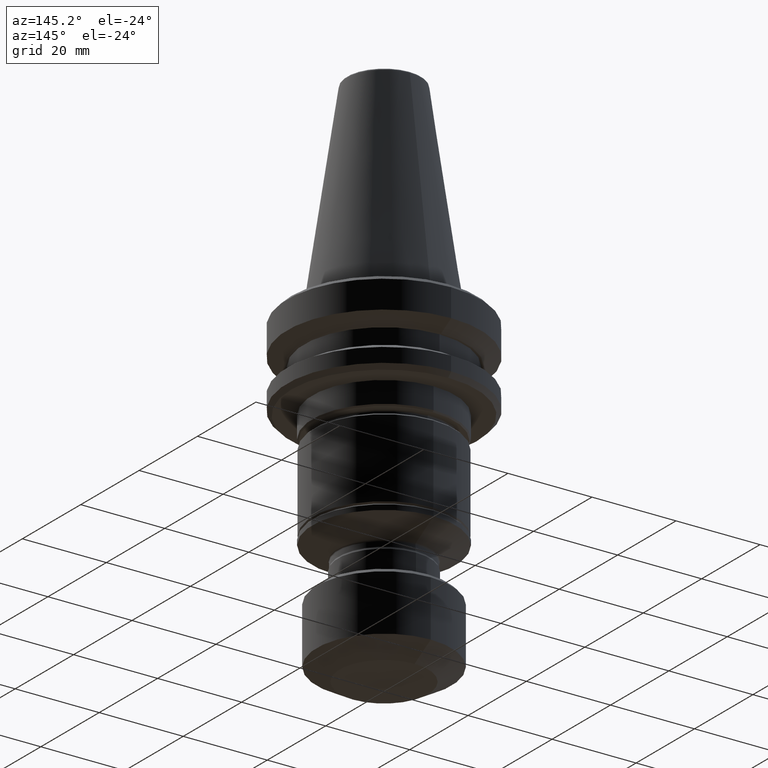
[diagram: clean part render]
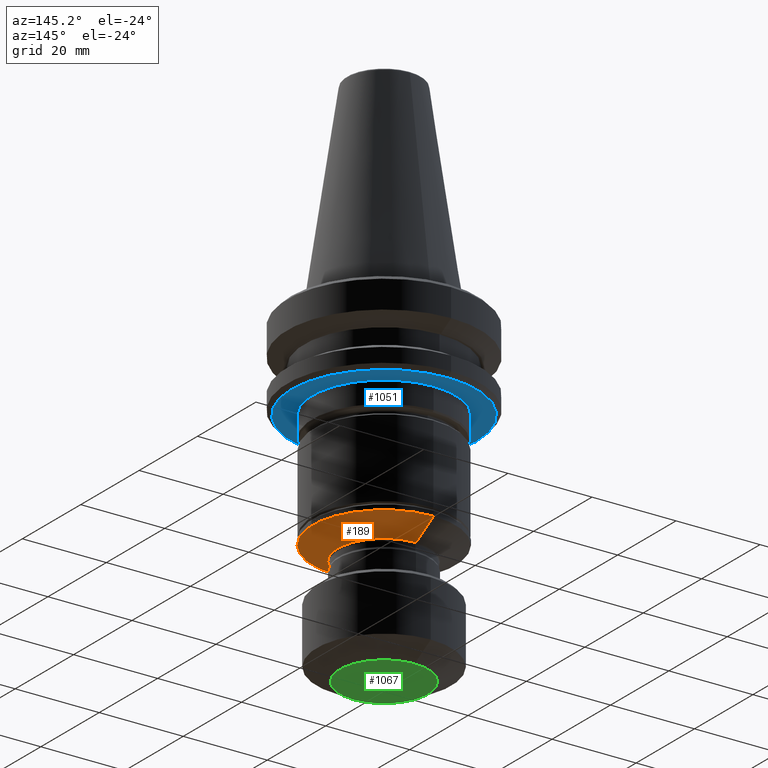
[diagram: same view with three faces highlighted in distinct colors, each labeled with its STEP entity id]
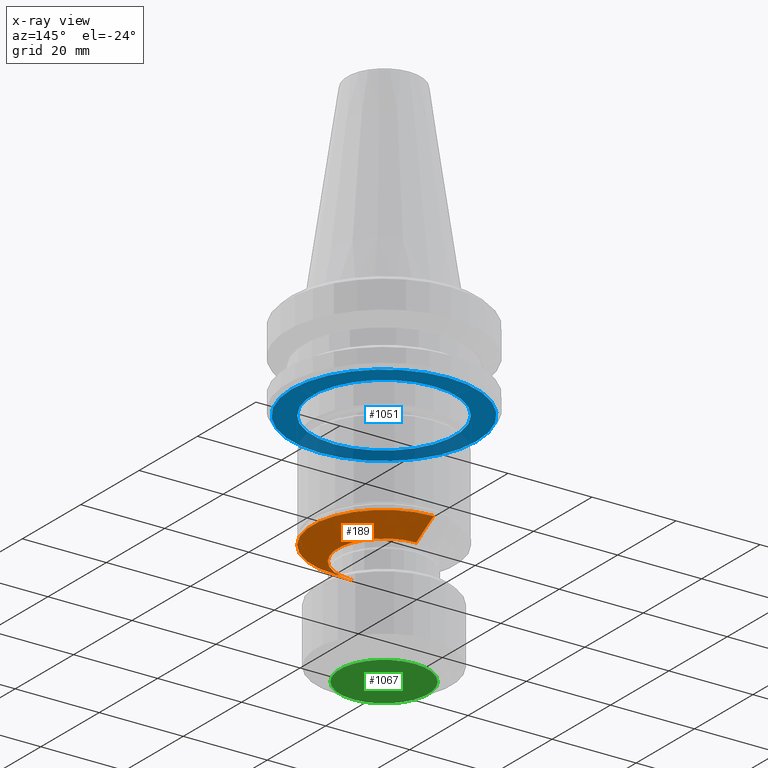
[diagram: x-ray of the same camera — body ghosted, the three highlighted faces saturated]
A machine part, auxiliary view with three faces highlighted in distinct colors.
The next image is the same camera in x-ray (body ghosted, the three faces saturated) — at least one of them is partly hidden behind the body in this view.
Their STEP definitions:

[orange] entity #189 — the highlighted conical surface has half-angle 60 deg.
#88 = DIRECTION ( 'NONE',  ( -0.0000000000000000000, 1.249865351798584200E-014, 1.000000000000000000 ) ) ;
#139 = CIRCLE ( 'NONE', #1562, 11.00000000000842300 ) ;
#160 = LINE ( 'NONE', #602, #583 ) ;
#189 = ADVANCED_FACE ( 'NONE', ( #737 ), #691, .T. ) ;
#335 = DIRECTION ( 'NONE',  ( 0.0000000000000000000, -1.000000000000000000, 1.261617073436711700E-014 ) ) ;
#491 = AXIS2_PLACEMENT_3D ( 'NONE', #1045, #88, #335 ) ;
#583 = VECTOR ( 'NONE', #1471, 1000.000000000000000 ) ;
#602 = CARTESIAN_POINT ( 'NONE',  ( 1.347111479063120200E-015, 11.00000000000624200, -53.25566243270035500 ) ) ;
#627 = CARTESIAN_POINT ( 'NONE',  ( 0.0000000000000000000, -2.137462447652778300E-012, -49.79156081756252700 ) ) ;
#628 = ORIENTED_EDGE ( 'NONE', *, *, #907, .F. ) ;
#691 = CONICAL_SURFACE ( 'NONE', #491, 11.00000000000842300, 1.047197551196584100 ) ;
#711 = CARTESIAN_POINT ( 'NONE',  ( 0.0000000000000000000, -11.00000000001060500, -53.25566243270007800 ) ) ;
#737 = FACE_OUTER_BOUND ( 'NONE', #1673, .T. ) ;
#774 = ORIENTED_EDGE ( 'NONE', *, *, #1664, .T. ) ;
#803 = DIRECTION ( 'NONE',  ( 0.0000000000000000000, -0.8660254037844257200, 0.5000000000000225400 ) ) ;
#837 = DIRECTION ( 'NONE',  ( 0.0000000000000000000, -1.000000000000000000, 1.265327711888360700E-014 ) ) ;
#846 = VERTEX_POINT ( 'NONE', #711 ) ;
#900 = DIRECTION ( 'NONE',  ( -0.0000000000000000000, 1.249865351798584200E-014, 1.000000000000000000 ) ) ;
#907 = EDGE_CURVE ( 'NONE', #1829, #1666, #1146, .T. ) ;
#977 = ORIENTED_EDGE ( 'NONE', *, *, #1386, .T. ) ;
#1002 = CARTESIAN_POINT ( 'NONE',  ( 1.347111479063120600E-015, 11.00000000000624600, -53.25566243270035500 ) ) ;
#1045 = CARTESIAN_POINT ( 'NONE',  ( 0.0000000000000000000, -2.180759053491479600E-012, -53.25566243270022000 ) ) ;
#1113 = CARTESIAN_POINT ( 'NONE',  ( 2.081899558551495000E-015, 17.00000000000598300, -49.79156081756274700 ) ) ;
#1146 = CIRCLE ( 'NONE', #1407, 17.00000000000812200 ) ;
#1228 = LINE ( 'NONE', #1366, #1615 ) ;
#1366 = CARTESIAN_POINT ( 'NONE',  ( 0.0000000000000000000, -11.00000000001060300, -53.25566243270007800 ) ) ;
#1382 = DIRECTION ( 'NONE',  ( -0.0000000000000000000, 1.249865351798584200E-014, 1.000000000000000000 ) ) ;
#1386 = EDGE_CURVE ( 'NONE', #1551, #1666, #160, .T. ) ;
#1407 = AXIS2_PLACEMENT_3D ( 'NONE', #627, #1382, #837 ) ;
#1428 = EDGE_CURVE ( 'NONE', #846, #1829, #1228, .T. ) ;
#1452 = CARTESIAN_POINT ( 'NONE',  ( 0.0000000000000000000, -2.180759053491479600E-012, -53.25566243270022000 ) ) ;
#1471 = DIRECTION ( 'NONE',  ( 1.060575238724898500E-016, 0.8660254037844380400, 0.5000000000000010000 ) ) ;
#1482 = DIRECTION ( 'NONE',  ( 0.0000000000000000000, -1.000000000000000000, 1.261617073436711700E-014 ) ) ;
#1551 = VERTEX_POINT ( 'NONE', #1002 ) ;
#1562 = AXIS2_PLACEMENT_3D ( 'NONE', #1452, #900, #1482 ) ;
#1576 = CARTESIAN_POINT ( 'NONE',  ( 0.0000000000000000000, -17.00000000001025300, -49.79156081756231300 ) ) ;
#1615 = VECTOR ( 'NONE', #803, 999.9999999999998900 ) ;
#1635 = ORIENTED_EDGE ( 'NONE', *, *, #1428, .F. ) ;
#1664 = EDGE_CURVE ( 'NONE', #846, #1551, #139, .T. ) ;
#1666 = VERTEX_POINT ( 'NONE', #1113 ) ;
#1673 = EDGE_LOOP ( 'NONE', ( #774, #977, #628, #1635 ) ) ;
#1829 = VERTEX_POINT ( 'NONE', #1576 ) ;

[blue] entity #1051 — the highlighted planar face has unit normal (-0, 0, 1).
#9 = CIRCLE ( 'NONE', #1140, 22.00000000000147800 ) ;
#58 = FACE_OUTER_BOUND ( 'NONE', #1851, .T. ) ;
#146 = DIRECTION ( 'NONE',  ( 0.0000000000000000000, -1.000000000000000000, 1.249865351798584200E-014 ) ) ;
#217 = AXIS2_PLACEMENT_3D ( 'NONE', #1445, #522, #558 ) ;
#231 = DIRECTION ( 'NONE',  ( -0.0000000000000000000, 1.249865351798584200E-014, 1.000000000000000000 ) ) ;
#301 = CIRCLE ( 'NONE', #217, 17.00000000000158500 ) ;
#522 = DIRECTION ( 'NONE',  ( -0.0000000000000000000, 1.249865351798584200E-014, 1.000000000000000000 ) ) ;
#524 = ORIENTED_EDGE ( 'NONE', *, *, #1796, .T. ) ;
#555 = CARTESIAN_POINT ( 'NONE',  ( 2.755455298081731300E-015, 21.99999999999968700, -22.00000000000046200 ) ) ;
#558 = DIRECTION ( 'NONE',  ( 0.0000000000000000000, -1.000000000000000000, 1.244919200406769100E-014 ) ) ;
#579 = DIRECTION ( 'NONE',  ( 0.0000000000000000000, -1.000000000000000000, 1.244919200406769100E-014 ) ) ;
#603 = DIRECTION ( 'NONE',  ( -0.0000000000000000000, 1.249865351798584200E-014, 1.000000000000000000 ) ) ;
#610 = DIRECTION ( 'NONE',  ( -0.0000000000000000000, 1.249865351798584200E-014, 1.000000000000000000 ) ) ;
#647 = CARTESIAN_POINT ( 'NONE',  ( 0.0000000000000000000, -17.00000000000337500, -22.00000000000002800 ) ) ;
#703 = VERTEX_POINT ( 'NONE', #555 ) ;
#719 = EDGE_CURVE ( 'NONE', #703, #1582, #875, .T. ) ;
#728 = ORIENTED_EDGE ( 'NONE', *, *, #1764, .F. ) ;
#787 = CARTESIAN_POINT ( 'NONE',  ( 0.0000000000000000000, -1.790105358270035300E-012, -22.00000000000018500 ) ) ;
#856 = VERTEX_POINT ( 'NONE', #647 ) ;
#864 = AXIS2_PLACEMENT_3D ( 'NONE', #1783, #610, #146 ) ;
#875 = CIRCLE ( 'NONE', #1343, 22.00000000000147800 ) ;
#969 = CARTESIAN_POINT ( 'NONE',  ( 0.0000000000000000000, -1.790105358270036100E-012, -22.00000000000024200 ) ) ;
#995 = PLANE ( 'NONE',  #864 ) ;
#1037 = CARTESIAN_POINT ( 'NONE',  ( 0.0000000000000000000, -22.00000000000326800, -21.99999999999991100 ) ) ;
#1051 = ADVANCED_FACE ( 'NONE', ( #58, #1224 ), #995, .F. ) ;
#1140 = AXIS2_PLACEMENT_3D ( 'NONE', #1199, #603, #1622 ) ;
#1191 = CARTESIAN_POINT ( 'NONE',  ( 2.081899558550699900E-015, 16.99999999999979400, -22.00000000000045500 ) ) ;
#1199 = CARTESIAN_POINT ( 'NONE',  ( 0.0000000000000000000, -1.790105358270035300E-012, -22.00000000000018500 ) ) ;
#1224 = FACE_BOUND ( 'NONE', #1349, .T. ) ;
#1285 = ORIENTED_EDGE ( 'NONE', *, *, #719, .F. ) ;
#1311 = AXIS2_PLACEMENT_3D ( 'NONE', #969, #1356, #579 ) ;
#1343 = AXIS2_PLACEMENT_3D ( 'NONE', #787, #231, #1393 ) ;
#1349 = EDGE_LOOP ( 'NONE', ( #1598, #524 ) ) ;
#1356 = DIRECTION ( 'NONE',  ( -0.0000000000000000000, 1.249865351798584200E-014, 1.000000000000000000 ) ) ;
#1393 = DIRECTION ( 'NONE',  ( 0.0000000000000000000, -1.000000000000000000, 1.245846860019623200E-014 ) ) ;
#1445 = CARTESIAN_POINT ( 'NONE',  ( 0.0000000000000000000, -1.790105358270036100E-012, -22.00000000000024200 ) ) ;
#1465 = VERTEX_POINT ( 'NONE', #1191 ) ;
#1503 = CIRCLE ( 'NONE', #1311, 17.00000000000158500 ) ;
#1582 = VERTEX_POINT ( 'NONE', #1037 ) ;
#1598 = ORIENTED_EDGE ( 'NONE', *, *, #1781, .T. ) ;
#1622 = DIRECTION ( 'NONE',  ( 0.0000000000000000000, -1.000000000000000000, 1.245846860019623200E-014 ) ) ;
#1764 = EDGE_CURVE ( 'NONE', #1582, #703, #9, .T. ) ;
#1781 = EDGE_CURVE ( 'NONE', #856, #1465, #1503, .T. ) ;
#1783 = CARTESIAN_POINT ( 'NONE',  ( 0.0000000000000000000, 3.089582040723326900E-027, -22.00000000000021700 ) ) ;
#1796 = EDGE_CURVE ( 'NONE', #1465, #856, #301, .T. ) ;
#1851 = EDGE_LOOP ( 'NONE', ( #728, #1285 ) ) ;

[green] entity #1067 — the highlighted planar face has unit normal (-0, 0, 1).
#145 = ORIENTED_EDGE ( 'NONE', *, *, #194, .F. ) ;
#194 = EDGE_CURVE ( 'NONE', #697, #888, #1075, .T. ) ;
#212 = ORIENTED_EDGE ( 'NONE', *, *, #1772, .F. ) ;
#250 = DIRECTION ( 'NONE',  ( 0.0000000000000000000, -1.000000000000000000, 1.189524669240418500E-014 ) ) ;
#396 = DIRECTION ( 'NONE',  ( 0.0000000000000000000, -1.000000000000000000, 1.249865351798584200E-014 ) ) ;
#554 = DIRECTION ( 'NONE',  ( -0.0000000000000000000, 1.249865351798584200E-014, 1.000000000000000000 ) ) ;
#697 = VERTEX_POINT ( 'NONE', #1110 ) ;
#723 = AXIS2_PLACEMENT_3D ( 'NONE', #1056, #992, #396 ) ;
#741 = CARTESIAN_POINT ( 'NONE',  ( 1.622657008871069400E-015, 10.50000000000474100, -78.99999999997047000 ) ) ;
#867 = DIRECTION ( 'NONE',  ( -0.0000000000000000000, 1.249865351798584200E-014, 1.000000000000000000 ) ) ;
#888 = VERTEX_POINT ( 'NONE', #741 ) ;
#915 = AXIS2_PLACEMENT_3D ( 'NONE', #1079, #867, #1727 ) ;
#957 = EDGE_LOOP ( 'NONE', ( #145, #212 ) ) ;
#992 = DIRECTION ( 'NONE',  ( -0.0000000000000000000, 1.249865351798584200E-014, 1.000000000000000000 ) ) ;
#1056 = CARTESIAN_POINT ( 'NONE',  ( 0.0000000000000000000, 8.201357837543351900E-028, -78.99999999997038500 ) ) ;
#1067 = ADVANCED_FACE ( 'NONE', ( #1115 ), #1480, .F. ) ;
#1075 = CIRCLE ( 'NONE', #915, 10.50000000000724400 ) ;
#1079 = CARTESIAN_POINT ( 'NONE',  ( 0.0000000000000000000, -2.502528608794855500E-012, -78.99999999997034200 ) ) ;
#1103 = CIRCLE ( 'NONE', #1134, 10.50000000000724400 ) ;
#1110 = CARTESIAN_POINT ( 'NONE',  ( 0.0000000000000000000, -10.50000000000974900, -78.99999999997021400 ) ) ;
#1115 = FACE_OUTER_BOUND ( 'NONE', #957, .T. ) ;
#1134 = AXIS2_PLACEMENT_3D ( 'NONE', #1577, #554, #250 ) ;
#1480 = PLANE ( 'NONE',  #723 ) ;
#1577 = CARTESIAN_POINT ( 'NONE',  ( 0.0000000000000000000, -2.502528608794855500E-012, -78.99999999997034200 ) ) ;
#1727 = DIRECTION ( 'NONE',  ( 0.0000000000000000000, -1.000000000000000000, 1.189524669240418500E-014 ) ) ;
#1772 = EDGE_CURVE ( 'NONE', #888, #697, #1103, .T. ) ;